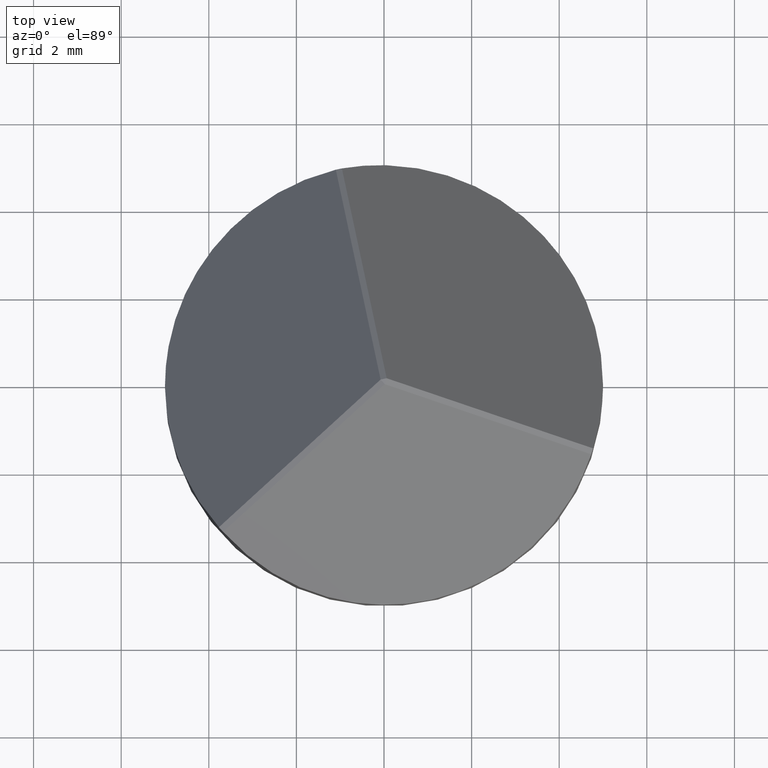
[diagram: clean part render]
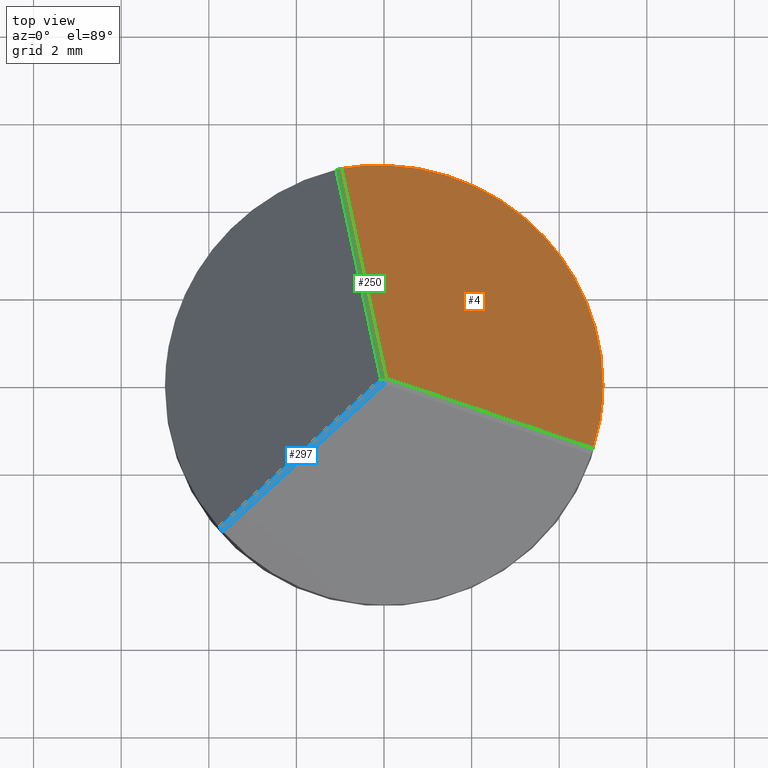
[diagram: same view with three faces highlighted in distinct colors, each labeled with its STEP entity id]
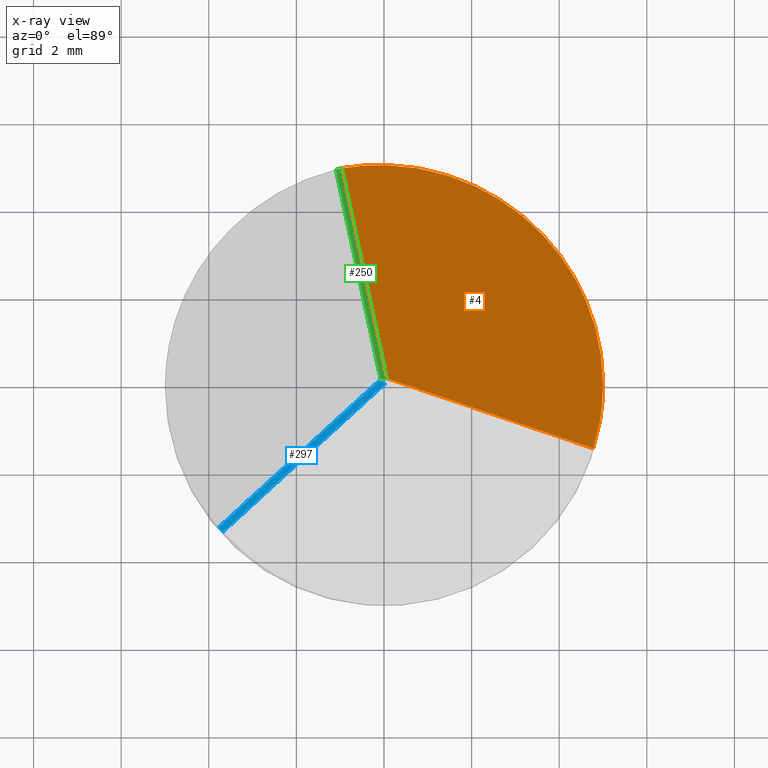
[diagram: x-ray of the same camera — body ghosted, the three highlighted faces saturated]
A machine part, top view with three faces highlighted in distinct colors.
The next image is the same camera in x-ray (body ghosted, the three faces saturated) — at least one of them is partly hidden behind the body in this view.
Their STEP definitions:

[orange] entity #4 — the highlighted planar face has unit normal (0.6077, 0.5453, 0.5774).
#1 = DIRECTION ( 'NONE',  ( 0.1683570817218958959, -0.7989509119468811704, 0.5773502691896261751 ) ) ;
#4 = ADVANCED_FACE ( 'NONE', ( #306 ), #161, .T. ) ;
#13 = CARTESIAN_POINT ( 'NONE',  ( 2.994905055917830072, 2.687120959792284935, 2.845177968644243105 ) ) ;
#17 = VERTEX_POINT ( 'NONE', #189 ) ;
#32 = CARTESIAN_POINT ( 'NONE',  ( 4.999999999999998224, 3.399973796034752027, 0.06131317339008388045 ) ) ;
#33 = AXIS2_PLACEMENT_3D ( 'NONE', #13, #45, #330 ) ;
#37 = CARTESIAN_POINT ( 'NONE',  ( 5.000000000000000000, 6.123233995736766282E-16, 3.272409614722002758 ) ) ;
#45 = DIRECTION ( 'NONE',  ( 0.6077332452617957292, 0.5452769656516156527, 0.5773502691896253980 ) ) ;
#49 = LINE ( 'NONE', #52, #183 ) ;
#52 = CARTESIAN_POINT ( 'NONE',  ( -0.7520534535644601837, 3.911856945613915393, 5.632620910369528389 ) ) ;
#83 = EDGE_CURVE ( 'NONE', #335, #315, #146, .T. ) ;
#84 = CARTESIAN_POINT ( 'NONE',  ( -0.9616780810028860982, 4.906646030489524968, 4.913751030691584809 ) ) ;
#102 = ORIENTED_EDGE ( 'NONE', *, *, #291, .T. ) ;
#105 = ORIENTED_EDGE ( 'NONE', *, *, #166, .T. ) ;
#114 = CARTESIAN_POINT ( 'NONE',  ( 5.000000000000000000, 6.123233995736766282E-16, 3.272409614722002758 ) ) ;
#146 =( BOUNDED_CURVE ( )  B_SPLINE_CURVE ( 3, ( #114, #32, #235, #84 ),
 .UNSPECIFIED., .F., .T. ) 
 B_SPLINE_CURVE_WITH_KNOTS ( ( 4, 4 ),
 ( 5.551902276905597233, 7.316240251305500486 ),
 .UNSPECIFIED. ) 
 CURVE ( )  GEOMETRIC_REPRESENTATION_ITEM ( )  RATIONAL_B_SPLINE_CURVE ( ( 1.000000000000000000, 0.7569852826710528060, 0.7569852826710528060, 1.000000000000000000 ) ) 
 REPRESENTATION_ITEM ( '' )  );
#161 = PLANE ( 'NONE',  #33 ) ;
#166 = EDGE_CURVE ( 'NONE', #17, #335, #357, .T. ) ;
#183 = VECTOR ( 'NONE', #1, 1000.000000000000000 ) ;
#189 = CARTESIAN_POINT ( 'NONE',  ( 4.774056766637435167, -1.486062579073748280, 4.913751030691591026 ) ) ;
#207 = CARTESIAN_POINT ( 'NONE',  ( -0.9616780810028860982, 4.906646030489524968, 4.913751030691584809 ) ) ;
#235 = CARTESIAN_POINT ( 'NONE',  ( 2.374815505013576189, 5.560582085615683567, 0.7840667299621245645 ) ) ;
#247 = CARTESIAN_POINT ( 'NONE',  ( 4.924110768126089610, -1.004005947505485885, 4.300523322111938107 ) ) ;
#256 = EDGE_LOOP ( 'NONE', ( #102, #339, #105, #284 ) ) ;
#261 = CARTESIAN_POINT ( 'NONE',  ( 5.000000000000000000, 6.123233995736766282E-16, 3.272409614722002758 ) ) ;
#270 = CARTESIAN_POINT ( 'NONE',  ( 4.774056766637435167, -1.486062579073748280, 4.913751030691591026 ) ) ;
#274 = VECTOR ( 'NONE', #283, 1000.000000000000114 ) ;
#283 = DIRECTION ( 'NONE',  ( 0.7760903269836912921, -0.2536739462952662949, -0.5773502691896258421 ) ) ;
#284 = ORIENTED_EDGE ( 'NONE', *, *, #83, .T. ) ;
#291 = EDGE_CURVE ( 'NONE', #315, #355, #49, .T. ) ;
#306 = FACE_OUTER_BOUND ( 'NONE', #256, .T. ) ;
#310 = CARTESIAN_POINT ( 'NONE',  ( 3.807731834008468930, -1.170208289256470247, 5.632620910369531053 ) ) ;
#315 = VERTEX_POINT ( 'NONE', #207 ) ;
#318 = LINE ( 'NONE', #310, #274 ) ;
#322 = EDGE_CURVE ( 'NONE', #355, #17, #318, .T. ) ;
#326 = CARTESIAN_POINT ( 'NONE',  ( 4.999999999999999112, -0.5048710720586937484, 3.749233790458249338 ) ) ;
#330 = DIRECTION ( 'NONE',  ( 0.6887517733186862001, 0.000000000000000000, -0.7249972377536104684 ) ) ;
#335 = VERTEX_POINT ( 'NONE', #261 ) ;
#339 = ORIENTED_EDGE ( 'NONE', *, *, #322, .T. ) ;
#355 = VERTEX_POINT ( 'NONE', #367 ) ;
#357 =( BOUNDED_CURVE ( )  B_SPLINE_CURVE ( 3, ( #270, #247, #326, #37 ),
 .UNSPECIFIED., .F., .F. ) 
 B_SPLINE_CURVE_WITH_KNOTS ( ( 4, 4 ),
 ( 5.250130363053671090, 5.551902276905597233 ),
 .UNSPECIFIED. ) 
 CURVE ( )  GEOMETRIC_REPRESENTATION_ITEM ( )  RATIONAL_B_SPLINE_CURVE ( ( 1.000000000000000000, 0.9924255294346555623, 0.9924255294346555623, 1.000000000000000000 ) ) 
 REPRESENTATION_ITEM ( '' )  );
#367 = CARTESIAN_POINT ( 'NONE',  ( 0.06077332452617843772, 0.05452769656515978752, 8.420063852094818557 ) ) ;

[blue] entity #297 — the highlighted planar face has unit normal (0.4297, 0.3856, -0.8165).
#21 = VECTOR ( 'NONE', #328, 1000.000000000000114 ) ;
#24 = LINE ( 'NONE', #364, #157 ) ;
#26 = CARTESIAN_POINT ( 'NONE',  ( -2.917296023219464463, -2.712488354421814574, 5.632620910369529277 ) ) ;
#28 = VERTEX_POINT ( 'NONE', #86 ) ;
#44 = VERTEX_POINT ( 'NONE', #343 ) ;
#65 = CARTESIAN_POINT ( 'NONE',  ( -3.768441069280552558, -3.286160663655941061, 4.913751030691575039 ) ) ;
#70 = CARTESIAN_POINT ( 'NONE',  ( -3.011740764090020228, -2.607225868597601526, 5.632620910369531053 ) ) ;
#79 = VERTEX_POINT ( 'NONE', #82 ) ;
#82 = CARTESIAN_POINT ( 'NONE',  ( -0.07760903269836634533, 0.02536739462952527363, 8.420063852094820334 ) ) ;
#86 = CARTESIAN_POINT ( 'NONE',  ( 0.01683570817218937171, -0.07989509119468515830, 8.420063852094820334 ) ) ;
#130 = VECTOR ( 'NONE', #202, 1000.000000000000114 ) ;
#131 = ORIENTED_EDGE ( 'NONE', *, *, #191, .F. ) ;
#141 = DIRECTION ( 'NONE',  ( 0.4297322988771148378, 0.3855690400370905269, -0.8164965809277260345 ) ) ;
#157 = VECTOR ( 'NONE', #230, 1000.000000000000114 ) ;
#168 = FACE_OUTER_BOUND ( 'NONE', #365, .T. ) ;
#178 = AXIS2_PLACEMENT_3D ( 'NONE', #344, #141, #228 ) ;
#186 = CARTESIAN_POINT ( 'NONE',  ( -3.705973104393262663, -3.356782070387760442, 4.913279594740163958 ) ) ;
#188 = CARTESIAN_POINT ( 'NONE',  ( -3.673996328409991463, -3.391423149480156773, 4.913751030691622113 ) ) ;
#191 = EDGE_CURVE ( 'NONE', #196, #44, #239, .T. ) ;
#196 = VERTEX_POINT ( 'NONE', #351 ) ;
#202 = DIRECTION ( 'NONE',  ( -0.6077332452617950631, -0.5452769656516156527, -0.5773502691896260641 ) ) ;
#222 = ORIENTED_EDGE ( 'NONE', *, *, #275, .F. ) ;
#228 = DIRECTION ( 'NONE',  ( -0.6077332452617952852, -0.5452769656516155417, -0.5773502691896258421 ) ) ;
#230 = DIRECTION ( 'NONE',  ( -0.6678251671697992276, 0.7443181753085367225, 9.609975081231045588E-29 ) ) ;
#239 =( BOUNDED_CURVE ( )  B_SPLINE_CURVE ( 3, ( #188, #186, #299, #65 ),
 .UNSPECIFIED., .F., .F. ) 
 B_SPLINE_CURVE_WITH_KNOTS ( ( 4, 4 ),
 ( 6.269042700108919952, 6.297327914250287151 ),
 .UNSPECIFIED. ) 
 CURVE ( )  GEOMETRIC_REPRESENTATION_ITEM ( )  RATIONAL_B_SPLINE_CURVE ( ( 1.000000000000000000, 0.9999333299996664426, 0.9999333299996664426, 1.000000000000000000 ) ) 
 REPRESENTATION_ITEM ( '' )  );
#245 = EDGE_CURVE ( 'NONE', #44, #79, #249, .T. ) ;
#249 = LINE ( 'NONE', #70, #21 ) ;
#254 = ORIENTED_EDGE ( 'NONE', *, *, #245, .F. ) ;
#275 = EDGE_CURVE ( 'NONE', #28, #196, #340, .T. ) ;
#297 = ADVANCED_FACE ( 'NONE', ( #168 ), #362, .F. ) ;
#299 = CARTESIAN_POINT ( 'NONE',  ( -3.737456783700360496, -3.321692235673728621, 4.913279594740163958 ) ) ;
#327 = EDGE_CURVE ( 'NONE', #28, #79, #24, .T. ) ;
#328 = DIRECTION ( 'NONE',  ( 0.6077332452617952852, 0.5452769656516155417, 0.5773502691896259531 ) ) ;
#334 = ORIENTED_EDGE ( 'NONE', *, *, #327, .T. ) ;
#340 = LINE ( 'NONE', #26, #130 ) ;
#343 = CARTESIAN_POINT ( 'NONE',  ( -3.768441069280552558, -3.286160663655941061, 4.913751030691575039 ) ) ;
#344 = CARTESIAN_POINT ( 'NONE',  ( -2.917296023219464018, -2.712488354421813241, 5.632620910369529277 ) ) ;
#351 = CARTESIAN_POINT ( 'NONE',  ( -3.673996328409991463, -3.391423149480156773, 4.913751030691622113 ) ) ;
#362 = PLANE ( 'NONE',  #178 ) ;
#364 = CARTESIAN_POINT ( 'NONE',  ( -0.07760903269836616492, 0.02536739462952585650, 8.420063852094820334 ) ) ;
#365 = EDGE_LOOP ( 'NONE', ( #334, #254, #131, #222 ) ) ;

[green] entity #250 — the highlighted planar face has unit normal (0.119, -0.5649, -0.8165).
#1 = DIRECTION ( 'NONE',  ( 0.1683570817218958959, -0.7989509119468811704, 0.5773502691896261751 ) ) ;
#10 = DIRECTION ( 'NONE',  ( -0.9785110319005724255, -0.2061944724013640151, 1.227288938537842194E-14 ) ) ;
#25 = EDGE_CURVE ( 'NONE', #79, #358, #42, .T. ) ;
#42 = LINE ( 'NONE', #46, #224 ) ;
#46 = CARTESIAN_POINT ( 'NONE',  ( -0.8904358107890046892, 3.882696643678281490, 5.632620910369530165 ) ) ;
#49 = LINE ( 'NONE', #52, #183 ) ;
#52 = CARTESIAN_POINT ( 'NONE',  ( -0.7520534535644601837, 3.911856945613915393, 5.632620910369528389 ) ) ;
#79 = VERTEX_POINT ( 'NONE', #82 ) ;
#82 = CARTESIAN_POINT ( 'NONE',  ( -0.07760903269836634533, 0.02536739462952527363, 8.420063852094820334 ) ) ;
#97 = AXIS2_PLACEMENT_3D ( 'NONE', #282, #173, #309 ) ;
#104 = ORIENTED_EDGE ( 'NONE', *, *, #25, .F. ) ;
#106 = PLANE ( 'NONE',  #97 ) ;
#111 = CARTESIAN_POINT ( 'NONE',  ( -1.100060438227439485, 4.877485728553889288, 4.913751030691609678 ) ) ;
#118 =( BOUNDED_CURVE ( )  B_SPLINE_CURVE ( 3, ( #276, #243, #125, #325 ),
 .UNSPECIFIED., .F., .T. ) 
 B_SPLINE_CURVE_WITH_KNOTS ( ( 4, 4 ),
 ( 6.269042700108901300, 6.297327914250268499 ),
 .UNSPECIFIED. ) 
 CURVE ( )  GEOMETRIC_REPRESENTATION_ITEM ( )  RATIONAL_B_SPLINE_CURVE ( ( 1.000000000000000000, 0.9999333299996664426, 0.9999333299996664426, 1.000000000000000000 ) ) 
 REPRESENTATION_ITEM ( '' )  );
#125 = CARTESIAN_POINT ( 'NONE',  ( -1.007941467796784396, 4.897578638067860091, 4.913279594740163070 ) ) ;
#142 = ORIENTED_EDGE ( 'NONE', *, *, #212, .F. ) ;
#171 = FACE_OUTER_BOUND ( 'NONE', #218, .T. ) ;
#173 = DIRECTION ( 'NONE',  ( 0.1190464341463306347, -0.5649436076728163725, -0.8164965809277258124 ) ) ;
#175 = VECTOR ( 'NONE', #10, 1000.000000000000114 ) ;
#183 = VECTOR ( 'NONE', #1, 1000.000000000000000 ) ;
#207 = CARTESIAN_POINT ( 'NONE',  ( -0.9616780810028860982, 4.906646030489524968, 4.913751030691584809 ) ) ;
#212 = EDGE_CURVE ( 'NONE', #358, #315, #118, .T. ) ;
#218 = EDGE_LOOP ( 'NONE', ( #142, #104, #290, #257 ) ) ;
#224 = VECTOR ( 'NONE', #289, 999.9999999999998863 ) ;
#233 = EDGE_CURVE ( 'NONE', #355, #79, #273, .T. ) ;
#243 = CARTESIAN_POINT ( 'NONE',  ( -1.054071995727281941, 4.887857889340327944, 4.913279594740163070 ) ) ;
#250 = ADVANCED_FACE ( 'NONE', ( #171 ), #106, .F. ) ;
#257 = ORIENTED_EDGE ( 'NONE', *, *, #291, .F. ) ;
#273 = LINE ( 'NONE', #352, #175 ) ;
#276 = CARTESIAN_POINT ( 'NONE',  ( -1.100060438227439485, 4.877485728553889288, 4.913751030691609678 ) ) ;
#282 = CARTESIAN_POINT ( 'NONE',  ( -0.8904358107890046892, 3.882696643678281490, 5.632620910369529277 ) ) ;
#289 = DIRECTION ( 'NONE',  ( -0.1683570817218959514, 0.7989509119468812814, -0.5773502691896260641 ) ) ;
#290 = ORIENTED_EDGE ( 'NONE', *, *, #233, .F. ) ;
#291 = EDGE_CURVE ( 'NONE', #315, #355, #49, .T. ) ;
#309 = DIRECTION ( 'NONE',  ( -0.1683570817218959237, 0.7989509119468812814, -0.5773502691896260641 ) ) ;
#315 = VERTEX_POINT ( 'NONE', #207 ) ;
#325 = CARTESIAN_POINT ( 'NONE',  ( -0.9616780810028860982, 4.906646030489524968, 4.913751030691584809 ) ) ;
#352 = CARTESIAN_POINT ( 'NONE',  ( -0.07760903269836616492, 0.02536739462952585650, 8.420063852094820334 ) ) ;
#355 = VERTEX_POINT ( 'NONE', #367 ) ;
#358 = VERTEX_POINT ( 'NONE', #111 ) ;
#367 = CARTESIAN_POINT ( 'NONE',  ( 0.06077332452617843772, 0.05452769656515978752, 8.420063852094818557 ) ) ;